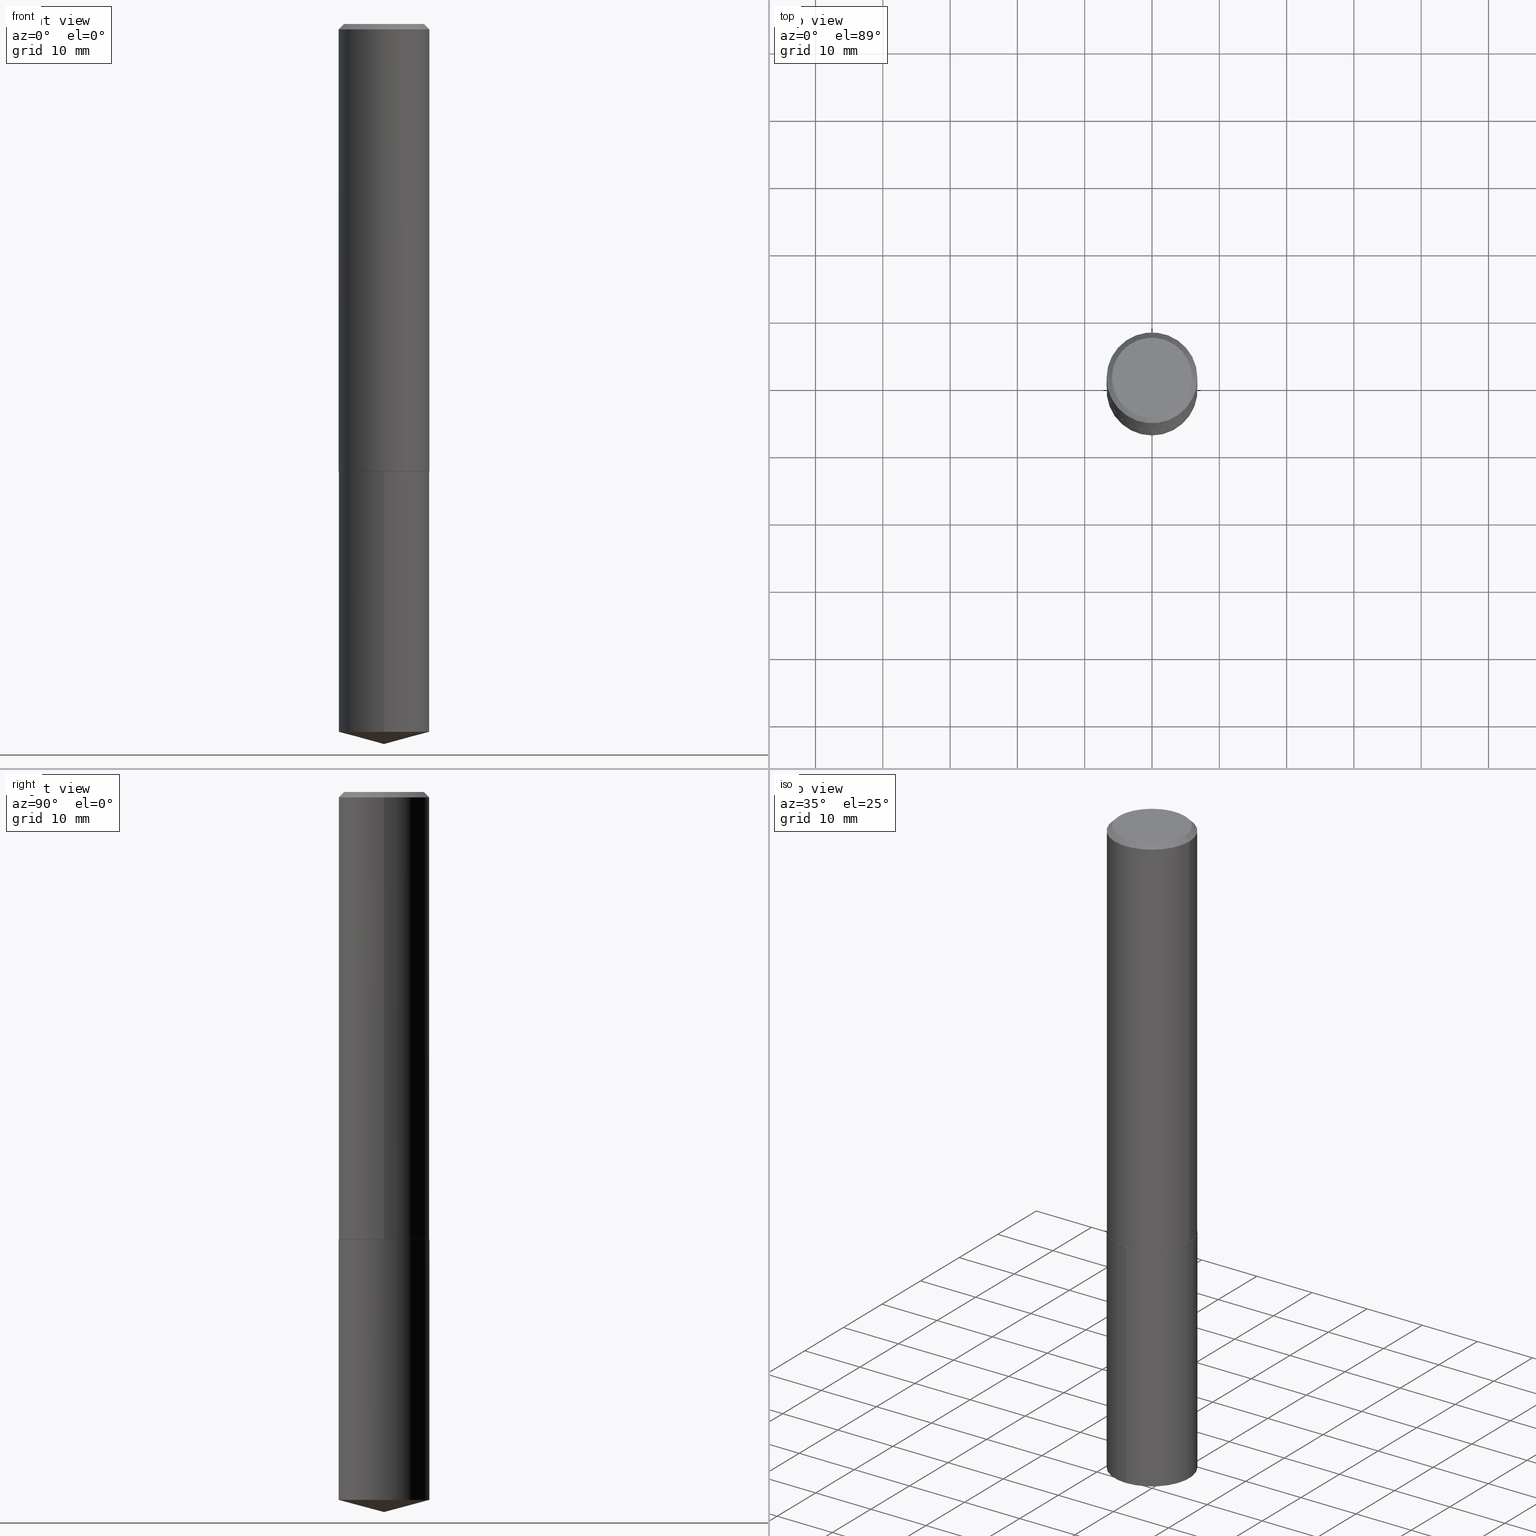
[diagram: canonical four-view strip — front | top / right | iso, engineering-drawing reading convention]
A machine part, canonical four-view strip (front | top / right | iso — engineering-drawing reading convention). The complete STEP part file that produces these views, byte-faithful:
ISO-10303-21;
HEADER;
FILE_DESCRIPTION (( 'STEP AP203' ),
    '1' );
FILE_NAME ('69049.STEP',
    '2024-04-23T14:40:26',
    ( '' ),
    ( '' ),
    'SwSTEP 2.0',
    'SolidWorks 2023',
    '' );
FILE_SCHEMA (( 'CONFIG_CONTROL_DESIGN' ));
ENDSEC;

DATA;
#1 = CONICAL_SURFACE ( 'NONE', #27, 0.2657499999999999862, 0.7853981633974452814 ) ;
#2 = LOCAL_TIME ( 10, 40, 26.00000000000000000, #161 ) ;
#3 = EDGE_LOOP ( 'NONE', ( #33, #278, #81, #119 ) ) ;
#4 = ORIENTED_EDGE ( 'NONE', *, *, #302, .F. ) ;
#5 = APPROVAL_ROLE ( '' ) ;
#6 = LINE ( 'NONE', #186, #223 ) ;
#7 = PERSON_AND_ORGANIZATION_ROLE ( 'creator' ) ;
#8 = AXIS2_PLACEMENT_3D ( 'NONE', #180, #295, #36 ) ;
#9 = SECURITY_CLASSIFICATION ( '', '', #215 ) ;
#10 = DIRECTION ( 'NONE',  ( -6.745023994389843077E-15, -0.9659258262890682012, 0.2588190451025209060 ) ) ;
#11 = CALENDAR_DATE ( 2024, 23, 4 ) ;
#12 = CARTESIAN_POINT ( 'NONE',  ( 6.401259147070212571E-29, -9.139301552555818359E-15, -2.617599999999999927 ) ) ;
#13 = CALENDAR_DATE ( 2024, 23, 4 ) ;
#14 = CARTESIAN_POINT ( 'NONE',  ( 6.402481881473307615E-29, -9.141047293225240652E-15, -2.618100000000000094 ) ) ;
#15 = DIRECTION ( 'NONE',  ( -2.445468806185136597E-29, 3.491481338843145583E-15, 1.000000000000000000 ) ) ;
#16 = CIRCLE ( 'NONE', #34, 0.2652500000000002633 ) ;
#17 = LOCAL_TIME ( 10, 40, 26.00000000000000000, #265 ) ;
#18 = VERTEX_POINT ( 'NONE', #172 ) ;
#19 = VERTEX_POINT ( 'NONE', #151 ) ;
#20 = EDGE_CURVE ( 'NONE', #196, #24, #80, .T. ) ;
#21 = DIRECTION ( 'NONE',  ( -2.445613187087085095E-29, 3.491274577173904618E-15, 1.000000000000000000 ) ) ;
#22 = ORIENTED_EDGE ( 'NONE', *, *, #137, .T. ) ;
#23 = DIMENSIONAL_EXPONENTS ( 1.000000000000000000, 0.000000000000000000, 0.000000000000000000, 0.000000000000000000, 0.000000000000000000, 0.000000000000000000, 0.000000000000000000 ) ;
#24 = VERTEX_POINT ( 'NONE', #390 ) ;
#25 = APPLICATION_CONTEXT ( 'configuration controlled 3d designs of mechanical parts and assemblies' ) ;
#26 = CARTESIAN_POINT ( 'NONE',  ( -1.855722331595061055E-15, -0.2657500000000091456, -2.618099999999999206 ) ) ;
#27 = AXIS2_PLACEMENT_3D ( 'NONE', #50, #384, #308 ) ;
#28 = DIRECTION ( 'NONE',  ( 1.000000000000000000, -6.982962677686262766E-15, 0.000000000000000000 ) ) ;
#29 = CARTESIAN_POINT ( 'NONE',  ( -1.175472951769406121E-47, 1.678263842514555526E-33, 4.806738686653342798E-19 ) ) ;
#30 = DIRECTION ( 'NONE',  ( -6.982962677686265922E-15, -1.000000000000000000, 3.510303681827593496E-15 ) ) ;
#31 = DIRECTION ( 'NONE',  ( -2.445468806185136597E-29, 3.491481338843145583E-15, 1.000000000000000000 ) ) ;
#32 = DIRECTION ( 'NONE',  ( -2.445613187087085095E-29, 3.491274577173904223E-15, 1.000000000000000000 ) ) ;
#33 = ORIENTED_EDGE ( 'NONE', *, *, #171, .F. ) ;
#34 = AXIS2_PLACEMENT_3D ( 'NONE', #389, #230, #359 ) ;
#35 = EDGE_CURVE ( 'NONE', #258, #24, #117, .T. ) ;
#36 = DIRECTION ( 'NONE',  ( 6.982962677686265922E-15, 1.000000000000000000, -3.491274577173904223E-15 ) ) ;
#37 = MECHANICAL_CONTEXT ( 'NONE', #25, 'mechanical' ) ;
#38 = DIRECTION ( 'NONE',  ( -6.982962677686266711E-15, -1.000000000000000000, 4.111906669673397387E-15 ) ) ;
#39 = DIRECTION ( 'NONE',  ( 1.000000000000000000, 0.000000000000000000, 0.000000000000000000 ) ) ;
#40 = LINE ( 'NONE', #156, #248 ) ;
#41 = EDGE_CURVE ( 'NONE', #231, #347, #16, .T. ) ;
#42 = DIRECTION ( 'NONE',  ( -2.445613187087085095E-29, 3.491274577173904618E-15, 1.000000000000000000 ) ) ;
#43 = EDGE_CURVE ( 'NONE', #19, #196, #142, .T. ) ;
#44 = DIRECTION ( 'NONE',  ( -6.982962677686266711E-15, -1.000000000000000000, 4.111906669673397387E-15 ) ) ;
#45 = PERSON_AND_ORGANIZATION ( #375, #288 ) ;
#46 = CARTESIAN_POINT ( 'NONE',  ( 6.402481881473307615E-29, -9.141047293225240652E-15, -2.618100000000000094 ) ) ;
#47 = CONICAL_SURFACE ( 'NONE', #93, 0.2657500000000003193, 0.7853981633973118326 ) ;
#48 = EDGE_CURVE ( 'NONE', #51, #198, #327, .T. ) ;
#49 = MANIFOLD_SOLID_BREP ( 'Body-Move/Copy2[2]', #343 ) ;
#50 = CARTESIAN_POINT ( 'NONE',  ( 7.642090019328601786E-31, -1.091087918388490144E-16, -0.03125000000000020123 ) ) ;
#51 = VERTEX_POINT ( 'NONE', #26 ) ;
#52 = EDGE_LOOP ( 'NONE', ( #175, #83, #201, #121 ) ) ;
#53 = ADVANCED_FACE ( 'NONE', ( #318 ), #292, .F. ) ;
#54 = ORIENTED_EDGE ( 'NONE', *, *, #137, .F. ) ;
#55 = AXIS2_PLACEMENT_3D ( 'NONE', #235, #143, #30 ) ;
#56 = FACE_OUTER_BOUND ( 'NONE', #309, .T. ) ;
#57 = EDGE_LOOP ( 'NONE', ( #351, #209 ) ) ;
#58 = DIRECTION ( 'NONE',  ( 1.000000000000000000, -6.982962677686265922E-15, 4.876176775795935793E-29 ) ) ;
#59 = CIRCLE ( 'NONE', #111, 0.2657499999999999862 ) ;
#60 =( GEOMETRIC_REPRESENTATION_CONTEXT ( 3 ) GLOBAL_UNCERTAINTY_ASSIGNED_CONTEXT ( ( #350 ) ) GLOBAL_UNIT_ASSIGNED_CONTEXT ( ( #86, #61, #322 ) ) REPRESENTATION_CONTEXT ( 'NONE', 'WORKASPACE' ) );
#61 =( NAMED_UNIT ( * ) PLANE_ANGLE_UNIT ( ) SI_UNIT ( $, .RADIAN. ) );
#62 = VERTEX_POINT ( 'NONE', #204 ) ;
#63 = CARTESIAN_POINT ( 'NONE',  ( 0.2657500000000001528, -1.855722331595126530E-15, 1.295843978167770573E-29 ) ) ;
#64 = ADVANCED_FACE ( 'NONE', ( #261 ), #116, .F. ) ;
#65 = PLANE ( 'NONE',  #8 ) ;
#66 = DATE_AND_TIME ( #99, #17 ) ;
#67 = CARTESIAN_POINT ( 'NONE',  ( 7.642090019328601786E-31, -1.091087918388490144E-16, -0.03125000000000020123 ) ) ;
#68 = APPROVAL_ROLE ( '' ) ;
#69 = CARTESIAN_POINT ( 'NONE',  ( -0.2657500000000001528, 1.888267320282467329E-15, -1.307207000235242070E-29 ) ) ;
#70 = EDGE_CURVE ( 'NONE', #357, #19, #210, .T. ) ;
#71 = APPROVAL_DATE_TIME ( #66, #244 ) ;
#72 = CARTESIAN_POINT ( 'NONE',  ( 1.012786611242790228E-28, -1.445927967944650304E-14, -4.141392502111430396 ) ) ;
#73 = ADVANCED_FACE ( 'NONE', ( #263 ), #65, .F. ) ;
#74 = APPROVAL_ROLE ( '' ) ;
#75 = AXIS2_PLACEMENT_3D ( 'NONE', #325, #31, #146 ) ;
#76 = DIRECTION ( 'NONE',  ( -2.445613187087085095E-29, 3.491274577173904618E-15, 1.000000000000000000 ) ) ;
#77 = DIRECTION ( 'NONE',  ( -2.445468806185136597E-29, 3.491481338843145583E-15, 1.000000000000000000 ) ) ;
#78 = CC_DESIGN_DATE_AND_TIME_ASSIGNMENT ( #126, #296, ( #9 ) ) ;
#79 = DIRECTION ( 'NONE',  ( 1.000000000000000000, -6.982962677686266711E-15, 4.876169155519525200E-29 ) ) ;
#80 = CIRCLE ( 'NONE', #75, 0.2657499999999999862 ) ;
#81 = ORIENTED_EDGE ( 'NONE', *, *, #35, .T. ) ;
#82 = DIRECTION ( 'NONE',  ( -2.445468806185136597E-29, 3.491481338843145583E-15, 1.000000000000000000 ) ) ;
#83 = ORIENTED_EDGE ( 'NONE', *, *, #113, .T. ) ;
#84 = ORIENTED_EDGE ( 'NONE', *, *, #43, .T. ) ;
#85 = ORIENTED_EDGE ( 'NONE', *, *, #253, .F. ) ;
#86 =( CONVERSION_BASED_UNIT ( 'INCH', #353 ) LENGTH_UNIT ( ) NAMED_UNIT ( #23 ) );
#87 = DIRECTION ( 'NONE',  ( -0.7071067811865453523, 2.468850131082234184E-15, -0.7071067811865496822 ) ) ;
#88 = AXIS2_PLACEMENT_3D ( 'NONE', #189, #303, #305 ) ;
#89 = CARTESIAN_POINT ( 'NONE',  ( -2.350945903538812242E-47, 3.356527685029111051E-33, 9.613477373306685597E-19 ) ) ;
#90 = CARTESIAN_POINT ( 'NONE',  ( 6.402481881473307615E-29, -9.141047293225240652E-15, -2.618100000000000094 ) ) ;
#91 = PERSON_AND_ORGANIZATION ( #375, #288 ) ;
#92 = ORIENTED_EDGE ( 'NONE', *, *, #70, .T. ) ;
#93 = AXIS2_PLACEMENT_3D ( 'NONE', #255, #82, #197 ) ;
#94 = CC_DESIGN_APPROVAL ( #356, ( #125 ) ) ;
#95 = DIRECTION ( 'NONE',  ( 6.863315791527698204E-15, 0.9659258262890699775, 0.2588190451025141336 ) ) ;
#96 = PERSON_AND_ORGANIZATION ( #375, #288 ) ;
#97 = EDGE_CURVE ( 'NONE', #347, #258, #6, .T. ) ;
#98 = DIRECTION ( 'NONE',  ( 0.7071067811865453523, -7.319954787623248157E-15, -0.7071067811865496822 ) ) ;
#99 = CALENDAR_DATE ( 2024, 23, 4 ) ;
#100 = CARTESIAN_POINT ( 'NONE',  ( 1.888267320282567515E-15, 0.2657499999999856088, -4.141392502111431284 ) ) ;
#101 = COORDINATED_UNIVERSAL_TIME_OFFSET ( 5, 0, .BEHIND. ) ;
#102 = VECTOR ( 'NONE', #87, 39.37007874015748143 ) ;
#103 = CYLINDRICAL_SURFACE ( 'NONE', #281, 0.2657499999999999862 ) ;
#104 = EDGE_CURVE ( 'NONE', #198, #51, #59, .T. ) ;
#105 = DIRECTION ( 'NONE',  ( -2.445468806185136877E-29, 3.491481338843145188E-15, 1.000000000000000000 ) ) ;
#106 = ORIENTED_EDGE ( 'NONE', *, *, #97, .T. ) ;
#107 = CARTESIAN_POINT ( 'NONE',  ( -2.350945903538812242E-47, 3.356527685029111051E-33, 9.613477373306685597E-19 ) ) ;
#108 = AXIS2_PLACEMENT_3D ( 'NONE', #371, #15, #219 ) ;
#109 = ORIENTED_EDGE ( 'NONE', *, *, #35, .F. ) ;
#110 = CARTESIAN_POINT ( 'NONE',  ( 0.2344999999999999862, -1.770536457612028720E-15, 9.613477373425848660E-19 ) ) ;
#111 = AXIS2_PLACEMENT_3D ( 'NONE', #220, #247, #38 ) ;
#112 = ORIENTED_EDGE ( 'NONE', *, *, #214, .T. ) ;
#113 = EDGE_CURVE ( 'NONE', #222, #198, #216, .T. ) ;
#114 = ADVANCED_BREP_SHAPE_REPRESENTATION ( '69049', ( #298, #49, #344 ), #60 ) ;
#115 = ORIENTED_EDGE ( 'NONE', *, *, #20, .T. ) ;
#116 = PLANE ( 'NONE',  #150 ) ;
#117 = LINE ( 'NONE', #63, #181 ) ;
#118 = APPROVAL_PERSON_ORGANIZATION ( #120, #244, #74 ) ;
#119 = ORIENTED_EDGE ( 'NONE', *, *, #20, .F. ) ;
#120 = PERSON_AND_ORGANIZATION ( #375, #288 ) ;
#121 = ORIENTED_EDGE ( 'NONE', *, *, #380, .F. ) ;
#122 = APPROVAL_DATE_TIME ( #304, #356 ) ;
#123 = CARTESIAN_POINT ( 'NONE',  ( 1.888267320282530044E-15, 0.2657499999999908269, -2.618100000000001426 ) ) ;
#124 = VECTOR ( 'NONE', #10, 39.37007874015748854 ) ;
#125 = PRODUCT_DEFINITION_FORMATION_WITH_SPECIFIED_SOURCE ( 'ANY', '', #312, .NOT_KNOWN. ) ;
#126 = DATE_AND_TIME ( #11, #362 ) ;
#127 = DIRECTION ( 'NONE',  ( -2.445468806185136597E-29, 3.491481338843145583E-15, 1.000000000000000000 ) ) ;
#128 = PERSON_AND_ORGANIZATION_ROLE ( 'creator' ) ;
#129 = ADVANCED_FACE ( 'NONE', ( #243 ), #103, .T. ) ;
#130 = CARTESIAN_POINT ( 'NONE',  ( -0.2657499999999999862, -2.735937851914864823E-15, -0.03125000000000020123 ) ) ;
#131 = PERSON_AND_ORGANIZATION_ROLE ( 'design_supplier' ) ;
#132 = DIRECTION ( 'NONE',  ( -0.7071067811864509833, 7.493145998870005484E-15, 0.7071067811866440511 ) ) ;
#133 = VECTOR ( 'NONE', #299, 39.37007874015748143 ) ;
#134 = CYLINDRICAL_SURFACE ( 'NONE', #319, 0.2657499999999999862 ) ;
#135 = FACE_OUTER_BOUND ( 'NONE', #311, .T. ) ;
#136 = ADVANCED_FACE ( 'NONE', ( #365 ), #240, .T. ) ;
#137 = EDGE_CURVE ( 'NONE', #258, #62, #370, .T. ) ;
#138 = AXIS2_PLACEMENT_3D ( 'NONE', #153, #266, #224 ) ;
#139 = EDGE_LOOP ( 'NONE', ( #284, #264, #316, #376 ) ) ;
#140 = CC_DESIGN_PERSON_AND_ORGANIZATION_ASSIGNMENT ( #212, #332, ( #9 ) ) ;
#141 = AXIS2_PLACEMENT_3D ( 'NONE', #67, #250, #184 ) ;
#142 = LINE ( 'NONE', #285, #102 ) ;
#143 = DIRECTION ( 'NONE',  ( -2.445613187087085095E-29, 3.491274577173904618E-15, 1.000000000000000000 ) ) ;
#144 = DIRECTION ( 'NONE',  ( 2.438088387897960049E-29, -3.491481338843145188E-15, -1.000000000000000000 ) ) ;
#145 = EDGE_CURVE ( 'NONE', #291, #222, #245, .T. ) ;
#146 = DIRECTION ( 'NONE',  ( 1.000000000000000000, -6.982962677686266711E-15, 0.000000000000000000 ) ) ;
#147 = DESIGN_CONTEXT ( 'detailed design', #335, 'design' ) ;
#148 = EDGE_CURVE ( 'NONE', #24, #196, #287, .T. ) ;
#149 = DIRECTION ( 'NONE',  ( -2.445468806185136877E-29, 3.491481338843145188E-15, 1.000000000000000000 ) ) ;
#150 = AXIS2_PLACEMENT_3D ( 'NONE', #29, #144, #320 ) ;
#151 = CARTESIAN_POINT ( 'NONE',  ( -0.2344999999999999862, 1.692059143836852879E-15, 9.613477373190261206E-19 ) ) ;
#152 = APPROVAL_STATUS ( 'not_yet_approved' ) ;
#153 = CARTESIAN_POINT ( 'NONE',  ( 1.012786611242790228E-28, -1.445927967944650304E-14, -4.141392502111430396 ) ) ;
#154 = APPROVAL ( #239, 'UNSPECIFIED' ) ;
#155 = APPLICATION_PROTOCOL_DEFINITION ( 'international standard', 'config_control_design', 1994, #335 ) ;
#156 = CARTESIAN_POINT ( 'NONE',  ( 0.2657499999999999862, -1.932286134746633648E-15, -0.03125000000000020123 ) ) ;
#157 = VECTOR ( 'NONE', #95, 39.37007874015748143 ) ;
#158 = APPROVAL_PERSON_ORGANIZATION ( #91, #154, #5 ) ;
#159 = DIRECTION ( 'NONE',  ( 1.000000000000000000, -6.982962677686262766E-15, 0.000000000000000000 ) ) ;
#160 = LINE ( 'NONE', #301, #124 ) ;
#161 = COORDINATED_UNIVERSAL_TIME_OFFSET ( 5, 0, .BEHIND. ) ;
#162 = DIRECTION ( 'NONE',  ( -6.982962677686266711E-15, -1.000000000000000000, 4.111906669673397387E-15 ) ) ;
#163 = VECTOR ( 'NONE', #132, 39.37007874015748143 ) ;
#164 = CARTESIAN_POINT ( 'NONE',  ( 0.2652500000000002633, -1.099327814348152457E-14, -2.618100000000000094 ) ) ;
#165 = EDGE_LOOP ( 'NONE', ( #355, #92 ) ) ;
#166 = CYLINDRICAL_SURFACE ( 'NONE', #348, 0.2657500000000001528 ) ;
#167 = ORIENTED_EDGE ( 'NONE', *, *, #330, .F. ) ;
#168 = AXIS2_PLACEMENT_3D ( 'NONE', #310, #21, #381 ) ;
#169 = LOCAL_TIME ( 10, 40, 26.00000000000000000, #101 ) ;
#170 = ORIENTED_EDGE ( 'NONE', *, *, #145, .T. ) ;
#171 = EDGE_CURVE ( 'NONE', #62, #196, #272, .T. ) ;
#172 = CARTESIAN_POINT ( 'NONE',  ( -1.855722331595024373E-15, -0.2657500000000144746, -4.141392502111429508 ) ) ;
#173 = DIRECTION ( 'NONE',  ( -2.445468806185136597E-29, 3.491481338843145583E-15, 1.000000000000000000 ) ) ;
#174 = AXIS2_PLACEMENT_3D ( 'NONE', #90, #289, #58 ) ;
#175 = ORIENTED_EDGE ( 'NONE', *, *, #253, .T. ) ;
#176 = CC_DESIGN_APPROVAL ( #244, ( #275 ) ) ;
#177 = ORIENTED_EDGE ( 'NONE', *, *, #41, .F. ) ;
#178 = CC_DESIGN_PERSON_AND_ORGANIZATION_ASSIGNMENT ( #329, #7, ( #275 ) ) ;
#179 = EDGE_LOOP ( 'NONE', ( #382, #177 ) ) ;
#180 = CARTESIAN_POINT ( 'NONE',  ( 6.402481881473307615E-29, -9.141047293225240652E-15, -2.618100000000000094 ) ) ;
#181 = VECTOR ( 'NONE', #149, 39.37007874015748143 ) ;
#182 = AXIS2_PLACEMENT_3D ( 'NONE', #290, #173, #28 ) ;
#183 = DATE_AND_TIME ( #326, #228 ) ;
#184 = DIRECTION ( 'NONE',  ( -1.000000000000000000, 6.982962677686266711E-15, 0.000000000000000000 ) ) ;
#185 = DIRECTION ( 'NONE',  ( 0.000000000000000000, 0.000000000000000000, 1.000000000000000000 ) ) ;
#186 = CARTESIAN_POINT ( 'NONE',  ( 0.2657500000000003193, -1.099502388415094371E-14, -2.617599999999999927 ) ) ;
#187 = CARTESIAN_POINT ( 'NONE',  ( 0.2657500000000003193, -1.099502388415094371E-14, -2.617599999999999927 ) ) ;
#188 = EDGE_CURVE ( 'NONE', #357, #24, #40, .T. ) ;
#189 = CARTESIAN_POINT ( 'NONE',  ( 6.401259147070212571E-29, -9.139301552555818359E-15, -2.617599999999999927 ) ) ;
#190 = CALENDAR_DATE ( 2024, 23, 4 ) ;
#191 = CARTESIAN_POINT ( 'NONE',  ( 1.888267320282567515E-15, 0.2657499999999908824, -2.618100000000001426 ) ) ;
#192 = DIRECTION ( 'NONE',  ( 1.000000000000000000, -6.982962677686266711E-15, 4.876176775795935232E-29 ) ) ;
#193 = CIRCLE ( 'NONE', #241, 0.2652500000000002633 ) ;
#194 = CC_DESIGN_APPROVAL ( #154, ( #9 ) ) ;
#195 = ORIENTED_EDGE ( 'NONE', *, *, #148, .F. ) ;
#196 = VERTEX_POINT ( 'NONE', #130 ) ;
#197 = DIRECTION ( 'NONE',  ( 1.000000000000000000, -6.982962677686262766E-15, 0.000000000000000000 ) ) ;
#198 = VERTEX_POINT ( 'NONE', #191 ) ;
#199 = FACE_OUTER_BOUND ( 'NONE', #328, .T. ) ;
#200 = AXIS2_PLACEMENT_3D ( 'NONE', #268, #77, #339 ) ;
#201 = ORIENTED_EDGE ( 'NONE', *, *, #48, .F. ) ;
#202 = DIRECTION ( 'NONE',  ( -6.982962677686266711E-15, -1.000000000000000000, 4.111906669673397387E-15 ) ) ;
#203 = CONICAL_SURFACE ( 'NONE', #141, 0.2657499999999999862, 0.7853981633974452814 ) ;
#204 = CARTESIAN_POINT ( 'NONE',  ( -0.2657500000000003193, -7.251034232273349452E-15, -2.617599999999999927 ) ) ;
#205 = DIRECTION ( 'NONE',  ( -2.445468806185136597E-29, 3.491481338843145583E-15, 1.000000000000000000 ) ) ;
#206 = ORIENTED_EDGE ( 'NONE', *, *, #302, .T. ) ;
#207 = CC_DESIGN_PERSON_AND_ORGANIZATION_ASSIGNMENT ( #358, #131, ( #125 ) ) ;
#208 = COORDINATED_UNIVERSAL_TIME_OFFSET ( 5, 0, .BEHIND. ) ;
#209 = ORIENTED_EDGE ( 'NONE', *, *, #104, .T. ) ;
#210 = CIRCLE ( 'NONE', #257, 0.2344999999999999862 ) ;
#211 = DIRECTION ( 'NONE',  ( 0.7071067811864509833, -2.468850131081245741E-15, 0.7071067811866440511 ) ) ;
#212 = PERSON_AND_ORGANIZATION ( #375, #288 ) ;
#213 = LINE ( 'NONE', #366, #163 ) ;
#214 = EDGE_CURVE ( 'NONE', #291, #18, #160, .T. ) ;
#215 = SECURITY_CLASSIFICATION_LEVEL ( 'unclassified' ) ;
#216 = LINE ( 'NONE', #123, #133 ) ;
#217 = VECTOR ( 'NONE', #32, 39.37007874015748143 ) ;
#218 = PERSON_AND_ORGANIZATION_ROLE ( 'design_owner' ) ;
#219 = DIRECTION ( 'NONE',  ( 1.000000000000000000, -6.982962677686266711E-15, 4.876176775795935232E-29 ) ) ;
#220 = CARTESIAN_POINT ( 'NONE',  ( 6.402481881473307615E-29, -9.141047293225240652E-15, -2.618100000000000094 ) ) ;
#221 = CC_DESIGN_PERSON_AND_ORGANIZATION_ASSIGNMENT ( #45, #128, ( #125 ) ) ;
#222 = VERTEX_POINT ( 'NONE', #100 ) ;
#223 = VECTOR ( 'NONE', #211, 39.37007874015748143 ) ;
#224 = DIRECTION ( 'NONE',  ( -6.982962677686266711E-15, -1.000000000000000000, 4.111906669673397387E-15 ) ) ;
#225 = EDGE_LOOP ( 'NONE', ( #280, #206, #354, #346 ) ) ;
#226 = ORIENTED_EDGE ( 'NONE', *, *, #188, .F. ) ;
#227 = AXIS2_PLACEMENT_3D ( 'NONE', #233, #236, #202 ) ;
#228 = LOCAL_TIME ( 10, 40, 26.00000000000000000, #208 ) ;
#229 = EDGE_LOOP ( 'NONE', ( #226, #167, #84, #115 ) ) ;
#230 = DIRECTION ( 'NONE',  ( -2.445468806185136597E-29, 3.491481338843145583E-15, 1.000000000000000000 ) ) ;
#231 = VERTEX_POINT ( 'NONE', #333 ) ;
#232 = CLOSED_SHELL ( 'NONE', ( #237, #360, #367, #129, #73 ) ) ;
#233 = CARTESIAN_POINT ( 'NONE',  ( 6.402481881473307615E-29, -9.141047293225240652E-15, -2.618100000000000094 ) ) ;
#234 = EDGE_CURVE ( 'NONE', #231, #62, #213, .T. ) ;
#235 = CARTESIAN_POINT ( 'NONE',  ( -8.598197163530237184E-28, 1.227438704003176143E-13, 35.15747874015747954 ) ) ;
#236 = DIRECTION ( 'NONE',  ( -2.445613187087085095E-29, 3.491274577173904618E-15, 1.000000000000000000 ) ) ;
#237 = ADVANCED_FACE ( 'NONE', ( #336 ), #134, .T. ) ;
#238 = ORIENTED_EDGE ( 'NONE', *, *, #383, .F. ) ;
#239 = APPROVAL_STATUS ( 'not_yet_approved' ) ;
#240 = CYLINDRICAL_SURFACE ( 'NONE', #108, 0.2657500000000001528 ) ;
#241 = AXIS2_PLACEMENT_3D ( 'NONE', #254, #379, #276 ) ;
#242 = PERSON_AND_ORGANIZATION ( #375, #288 ) ;
#243 = FACE_OUTER_BOUND ( 'NONE', #225, .T. ) ;
#244 = APPROVAL ( #271, 'UNSPECIFIED' ) ;
#245 = LINE ( 'NONE', #363, #157 ) ;
#246 = APPROVAL_DATE_TIME ( #183, #154 ) ;
#247 = DIRECTION ( 'NONE',  ( -2.445613187087085095E-29, 3.491274577173904618E-15, 1.000000000000000000 ) ) ;
#248 = VECTOR ( 'NONE', #98, 39.37007874015748143 ) ;
#249 = CC_DESIGN_SECURITY_CLASSIFICATION ( #9, ( #125 ) ) ;
#250 = DIRECTION ( 'NONE',  ( 2.445468806185136597E-29, -3.491481338843145583E-15, -1.000000000000000000 ) ) ;
#251 = PRODUCT_DEFINITION_SHAPE ( 'NONE', 'NONE',  #275 ) ;
#252 = CONICAL_SURFACE ( 'NONE', #88, 0.2657500000000003193, 0.7853981633973118326 ) ;
#253 = EDGE_CURVE ( 'NONE', #18, #222, #262, .T. ) ;
#254 = CARTESIAN_POINT ( 'NONE',  ( 6.402481881473307615E-29, -9.141047293225240652E-15, -2.618100000000000094 ) ) ;
#255 = CARTESIAN_POINT ( 'NONE',  ( 6.401259147070212571E-29, -9.139301552555818359E-15, -2.617599999999999927 ) ) ;
#256 = EDGE_LOOP ( 'NONE', ( #387, #342, #54, #345 ) ) ;
#257 = AXIS2_PLACEMENT_3D ( 'NONE', #89, #205, #323 ) ;
#258 = VERTEX_POINT ( 'NONE', #187 ) ;
#259 = CC_DESIGN_DATE_AND_TIME_ASSIGNMENT ( #267, #338, ( #275 ) ) ;
#260 = ORIENTED_EDGE ( 'NONE', *, *, #171, .T. ) ;
#261 = FACE_OUTER_BOUND ( 'NONE', #165, .T. ) ;
#262 = CIRCLE ( 'NONE', #377, 0.2657499999999999862 ) ;
#263 = FACE_OUTER_BOUND ( 'NONE', #57, .T. ) ;
#264 = ORIENTED_EDGE ( 'NONE', *, *, #188, .T. ) ;
#265 = COORDINATED_UNIVERSAL_TIME_OFFSET ( 5, 0, .BEHIND. ) ;
#266 = DIRECTION ( 'NONE',  ( -2.445613187087085095E-29, 3.491274577173904618E-15, 1.000000000000000000 ) ) ;
#267 = DATE_AND_TIME ( #190, #169 ) ;
#268 = CARTESIAN_POINT ( 'NONE',  ( 7.642090019328601786E-31, -1.091087918388490144E-16, -0.03125000000000020123 ) ) ;
#269 = ADVANCED_FACE ( 'NONE', ( #270 ), #252, .T. ) ;
#270 = FACE_OUTER_BOUND ( 'NONE', #256, .T. ) ;
#271 = APPROVAL_STATUS ( 'not_yet_approved' ) ;
#272 = LINE ( 'NONE', #69, #369 ) ;
#273 = COORDINATED_UNIVERSAL_TIME_OFFSET ( 5, 0, .BEHIND. ) ;
#274 = FACE_OUTER_BOUND ( 'NONE', #139, .T. ) ;
#275 = PRODUCT_DEFINITION ( 'UNKNOWN', '', #125, #147 ) ;
#276 = DIRECTION ( 'NONE',  ( 1.000000000000000000, -6.982962677686265922E-15, 0.000000000000000000 ) ) ;
#277 = ORIENTED_EDGE ( 'NONE', *, *, #214, .F. ) ;
#278 = ORIENTED_EDGE ( 'NONE', *, *, #383, .T. ) ;
#279 = ADVANCED_FACE ( 'NONE', ( #274 ), #203, .T. ) ;
#280 = ORIENTED_EDGE ( 'NONE', *, *, #113, .F. ) ;
#281 = AXIS2_PLACEMENT_3D ( 'NONE', #14, #331, #44 ) ;
#282 = PRODUCT_RELATED_PRODUCT_CATEGORY ( 'detail', '', ( #312 ) ) ;
#283 = ORIENTED_EDGE ( 'NONE', *, *, #41, .T. ) ;
#284 = ORIENTED_EDGE ( 'NONE', *, *, #70, .F. ) ;
#285 = CARTESIAN_POINT ( 'NONE',  ( -0.2657499999999999862, 1.746613539756276246E-15, -0.03125000000000020123 ) ) ;
#286 = CC_DESIGN_PERSON_AND_ORGANIZATION_ASSIGNMENT ( #96, #218, ( #312 ) ) ;
#287 = CIRCLE ( 'NONE', #200, 0.2657499999999999862 ) ;
#288 = ORGANIZATION ( 'UNSPECIFIED', 'UNSPECIFIED', '' ) ;
#289 = DIRECTION ( 'NONE',  ( -2.438088387897960049E-29, 3.491481338843145188E-15, 1.000000000000000000 ) ) ;
#290 = CARTESIAN_POINT ( 'NONE',  ( 6.401259147070212571E-29, -9.139301552555818359E-15, -2.617599999999999927 ) ) ;
#291 = VERTEX_POINT ( 'NONE', #297 ) ;
#292 = PLANE ( 'NONE',  #174 ) ;
#293 = CIRCLE ( 'NONE', #138, 0.2657499999999999862 ) ;
#294 = CONICAL_SURFACE ( 'NONE', #55, 146.9311341562569737, 1.308996938995750536 ) ;
#295 = DIRECTION ( 'NONE',  ( 2.445613187087085095E-29, -3.491274577173904223E-15, -1.000000000000000000 ) ) ;
#296 = DATE_TIME_ROLE ( 'classification_date' ) ;
#297 = CARTESIAN_POINT ( 'NONE',  ( 1.030239011192305554E-28, -1.470734328380279222E-14, -4.212600000000000122 ) ) ;
#298 = MANIFOLD_SOLID_BREP ( 'Body-Move/Copy2[1]', #232 ) ;
#299 = DIRECTION ( 'NONE',  ( -2.445613187087085095E-29, 3.491274577173904223E-15, 1.000000000000000000 ) ) ;
#300 = APPLICATION_PROTOCOL_DEFINITION ( 'international standard', 'config_control_design', 1994, #25 ) ;
#301 = CARTESIAN_POINT ( 'NONE',  ( 1.030163410464427363E-28, -1.470842592925527015E-14, -4.212600000000000122 ) ) ;
#302 = EDGE_CURVE ( 'NONE', #222, #18, #293, .T. ) ;
#303 = DIRECTION ( 'NONE',  ( -2.445468806185136597E-29, 3.491481338843145583E-15, 1.000000000000000000 ) ) ;
#304 = DATE_AND_TIME ( #13, #2 ) ;
#305 = DIRECTION ( 'NONE',  ( 1.000000000000000000, -6.982962677686262766E-15, 0.000000000000000000 ) ) ;
#306 = AXIS2_PLACEMENT_3D ( 'NONE', #107, #341, #79 ) ;
#307 = FACE_OUTER_BOUND ( 'NONE', #229, .T. ) ;
#308 = DIRECTION ( 'NONE',  ( -1.000000000000000000, 6.982962677686266711E-15, 0.000000000000000000 ) ) ;
#309 = EDGE_LOOP ( 'NONE', ( #352, #283, #106, #238 ) ) ;
#310 = CARTESIAN_POINT ( 'NONE',  ( -8.598197163530237184E-28, 1.227438704003176143E-13, 35.15747874015747954 ) ) ;
#311 = EDGE_LOOP ( 'NONE', ( #277, #170, #85 ) ) ;
#312 = PRODUCT ( '69049', '69049', '', ( #37 ) ) ;
#313 = AXIS2_PLACEMENT_3D ( 'NONE', #12, #127, #159 ) ;
#314 = APPROVAL_PERSON_ORGANIZATION ( #242, #356, #68 ) ;
#315 = CARTESIAN_POINT ( 'NONE',  ( -1.855722331595061055E-15, -0.2657500000000091456, -2.618099999999999206 ) ) ;
#316 = ORIENTED_EDGE ( 'NONE', *, *, #148, .T. ) ;
#317 = LINE ( 'NONE', #315, #217 ) ;
#318 = FACE_OUTER_BOUND ( 'NONE', #179, .T. ) ;
#319 = AXIS2_PLACEMENT_3D ( 'NONE', #46, #42, #368 ) ;
#320 = DIRECTION ( 'NONE',  ( -1.000000000000000000, 6.982962677686265922E-15, -4.876176775795935793E-29 ) ) ;
#321 = ADVANCED_FACE ( 'NONE', ( #374 ), #166, .T. ) ;
#322 =( NAMED_UNIT ( * ) SI_UNIT ( $, .STERADIAN. ) SOLID_ANGLE_UNIT ( ) );
#323 = DIRECTION ( 'NONE',  ( 1.000000000000000000, -6.982962677686266711E-15, 4.876169155519525200E-29 ) ) ;
#324 = ADVANCED_FACE ( 'NONE', ( #56 ), #47, .T. ) ;
#325 = CARTESIAN_POINT ( 'NONE',  ( 7.642090019328601786E-31, -1.091087918388490144E-16, -0.03125000000000020123 ) ) ;
#326 = CALENDAR_DATE ( 2024, 23, 4 ) ;
#327 = CIRCLE ( 'NONE', #227, 0.2657499999999999862 ) ;
#328 = EDGE_LOOP ( 'NONE', ( #385, #112, #4 ) ) ;
#329 = PERSON_AND_ORGANIZATION ( #375, #288 ) ;
#330 = EDGE_CURVE ( 'NONE', #19, #357, #386, .T. ) ;
#331 = DIRECTION ( 'NONE',  ( -2.445613187087085095E-29, 3.491274577173904618E-15, 1.000000000000000000 ) ) ;
#332 = PERSON_AND_ORGANIZATION_ROLE ( 'classification_officer' ) ;
#333 = CARTESIAN_POINT ( 'NONE',  ( -0.2652500000000002633, -7.253683459447461442E-15, -2.618100000000000094 ) ) ;
#334 = ADVANCED_FACE ( 'NONE', ( #307 ), #1, .T. ) ;
#335 = APPLICATION_CONTEXT ( 'configuration controlled 3d designs of mechanical parts and assemblies' ) ;
#336 = FACE_OUTER_BOUND ( 'NONE', #52, .T. ) ;
#337 = CONICAL_SURFACE ( 'NONE', #168, 146.9311341562569737, 1.308996938995750536 ) ;
#338 = DATE_TIME_ROLE ( 'creation_date' ) ;
#339 = DIRECTION ( 'NONE',  ( 1.000000000000000000, -6.982962677686266711E-15, 0.000000000000000000 ) ) ;
#340 = DIRECTION ( 'NONE',  ( -2.445468806185136597E-29, 3.491481338843145583E-15, 1.000000000000000000 ) ) ;
#341 = DIRECTION ( 'NONE',  ( -2.445468806185136597E-29, 3.491481338843145583E-15, 1.000000000000000000 ) ) ;
#342 = ORIENTED_EDGE ( 'NONE', *, *, #234, .T. ) ;
#343 = CLOSED_SHELL ( 'NONE', ( #279, #321, #269, #53, #324, #136, #334, #64 ) ) ;
#344 = AXIS2_PLACEMENT_3D ( 'NONE', #364, #185, #39 ) ;
#345 = ORIENTED_EDGE ( 'NONE', *, *, #97, .F. ) ;
#346 = ORIENTED_EDGE ( 'NONE', *, *, #104, .F. ) ;
#347 = VERTEX_POINT ( 'NONE', #164 ) ;
#348 = AXIS2_PLACEMENT_3D ( 'NONE', #372, #340, #192 ) ;
#349 = EDGE_CURVE ( 'NONE', #347, #231, #193, .T. ) ;
#350 = UNCERTAINTY_MEASURE_WITH_UNIT (LENGTH_MEASURE( 1.000000000000000082E-05 ), #86, 'distance_accuracy_value', 'NONE');
#351 = ORIENTED_EDGE ( 'NONE', *, *, #48, .T. ) ;
#352 = ORIENTED_EDGE ( 'NONE', *, *, #234, .F. ) ;
#353 = LENGTH_MEASURE_WITH_UNIT ( LENGTH_MEASURE( 0.02539999999999999897 ), #388 );
#354 = ORIENTED_EDGE ( 'NONE', *, *, #380, .T. ) ;
#355 = ORIENTED_EDGE ( 'NONE', *, *, #330, .T. ) ;
#356 = APPROVAL ( #152, 'UNSPECIFIED' ) ;
#357 = VERTEX_POINT ( 'NONE', #110 ) ;
#358 = PERSON_AND_ORGANIZATION ( #375, #288 ) ;
#359 = DIRECTION ( 'NONE',  ( 1.000000000000000000, -6.982962677686265922E-15, 0.000000000000000000 ) ) ;
#360 = ADVANCED_FACE ( 'NONE', ( #135 ), #337, .T. ) ;
#361 = SHAPE_DEFINITION_REPRESENTATION ( #251, #114 ) ;
#362 = LOCAL_TIME ( 10, 40, 26.00000000000000000, #273 ) ;
#363 = CARTESIAN_POINT ( 'NONE',  ( 1.030239674121449553E-28, -1.470734328380278907E-14, -4.212600000000000122 ) ) ;
#364 = CARTESIAN_POINT ( 'NONE',  ( 0.000000000000000000, 0.000000000000000000, 0.000000000000000000 ) ) ;
#365 = FACE_OUTER_BOUND ( 'NONE', #3, .T. ) ;
#366 = CARTESIAN_POINT ( 'NONE',  ( -0.2657500000000003193, -7.251034232273349452E-15, -2.617599999999999927 ) ) ;
#367 = ADVANCED_FACE ( 'NONE', ( #199 ), #294, .T. ) ;
#368 = DIRECTION ( 'NONE',  ( -6.982962677686266711E-15, -1.000000000000000000, 4.111906669673397387E-15 ) ) ;
#369 = VECTOR ( 'NONE', #105, 39.37007874015748143 ) ;
#370 = CIRCLE ( 'NONE', #313, 0.2657500000000003193 ) ;
#371 = CARTESIAN_POINT ( 'NONE',  ( 0.000000000000000000, 0.000000000000000000, 0.000000000000000000 ) ) ;
#372 = CARTESIAN_POINT ( 'NONE',  ( 0.000000000000000000, 0.000000000000000000, 0.000000000000000000 ) ) ;
#373 = EDGE_LOOP ( 'NONE', ( #22, #260, #195, #109 ) ) ;
#374 = FACE_OUTER_BOUND ( 'NONE', #373, .T. ) ;
#375 = PERSON ( 'UNSPECIFIED', 'UNSPECIFIED', 'UNSPECIFIED', ('UNSPECIFIED'), ('UNSPECIFIED'), ('UNSPECIFIED') ) ;
#376 = ORIENTED_EDGE ( 'NONE', *, *, #43, .F. ) ;
#377 = AXIS2_PLACEMENT_3D ( 'NONE', #72, #76, #162 ) ;
#378 = CIRCLE ( 'NONE', #182, 0.2657500000000003193 ) ;
#379 = DIRECTION ( 'NONE',  ( -2.445468806185136597E-29, 3.491481338843145583E-15, 1.000000000000000000 ) ) ;
#380 = EDGE_CURVE ( 'NONE', #18, #51, #317, .T. ) ;
#381 = DIRECTION ( 'NONE',  ( -6.982962677686265922E-15, -1.000000000000000000, 3.510303681827593496E-15 ) ) ;
#382 = ORIENTED_EDGE ( 'NONE', *, *, #349, .F. ) ;
#383 = EDGE_CURVE ( 'NONE', #62, #258, #378, .T. ) ;
#384 = DIRECTION ( 'NONE',  ( 2.445468806185136597E-29, -3.491481338843145583E-15, -1.000000000000000000 ) ) ;
#385 = ORIENTED_EDGE ( 'NONE', *, *, #145, .F. ) ;
#386 = CIRCLE ( 'NONE', #306, 0.2344999999999999862 ) ;
#387 = ORIENTED_EDGE ( 'NONE', *, *, #349, .T. ) ;
#388 =( LENGTH_UNIT ( ) NAMED_UNIT ( * ) SI_UNIT ( $, .METRE. ) );
#389 = CARTESIAN_POINT ( 'NONE',  ( 6.402481881473307615E-29, -9.141047293225240652E-15, -2.618100000000000094 ) ) ;
#390 = CARTESIAN_POINT ( 'NONE',  ( 0.2657499999999999862, -1.964831123433974447E-15, -0.03125000000000020123 ) ) ;
ENDSEC;
END-ISO-10303-21;
